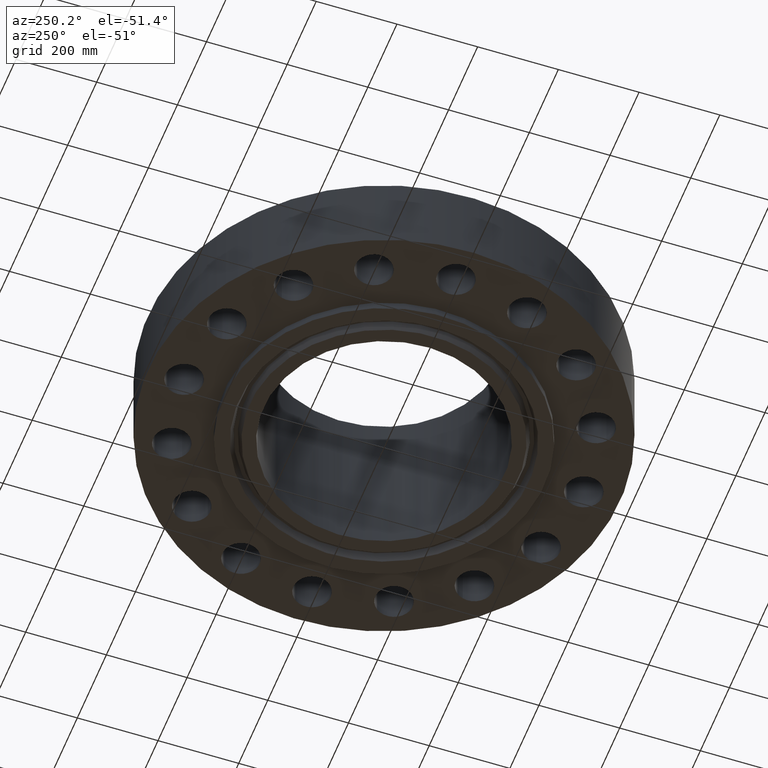
[diagram: clean part render]
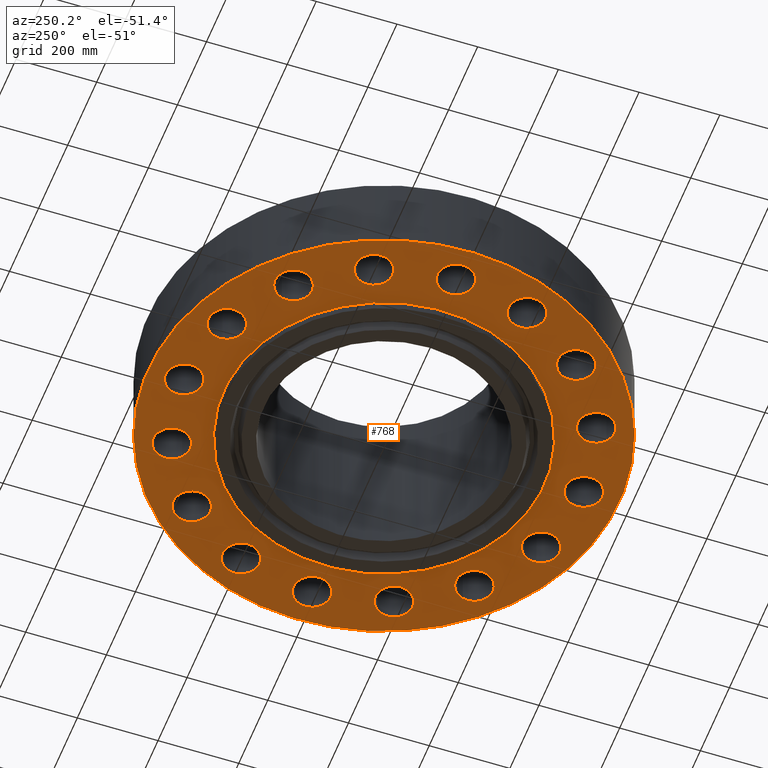
[diagram: same view with one face highlighted and labeled with its STEP entity id]
A machine part, auxiliary view. The second image highlights one B-rep face of the part: STEP entity #768.
In plain terms, the highlighted planar face has unit normal (0, 0, -1).
Its self-contained STEP definition (entity closure, byte-faithful):
#51=AXIS2_PLACEMENT_3D('Circle Axis2P3D',#49,#50,$) ;
#77=AXIS2_PLACEMENT_3D('Circle Axis2P3D',#75,#76,$) ;
#99=AXIS2_PLACEMENT_3D('Circle Axis2P3D',#97,#98,$) ;
#134=AXIS2_PLACEMENT_3D('Circle Axis2P3D',#132,#133,$) ;
#447=AXIS2_PLACEMENT_3D('Circle Axis2P3D',#445,#446,$) ;
#471=AXIS2_PLACEMENT_3D('Circle Axis2P3D',#469,#470,$) ;
#484=AXIS2_PLACEMENT_3D('Plane Axis2P3D',#481,#482,#483) ;
#500=AXIS2_PLACEMENT_3D('Circle Axis2P3D',#498,#499,$) ;
#509=AXIS2_PLACEMENT_3D('Circle Axis2P3D',#507,#508,$) ;
#518=AXIS2_PLACEMENT_3D('Circle Axis2P3D',#516,#517,$) ;
#527=AXIS2_PLACEMENT_3D('Circle Axis2P3D',#525,#526,$) ;
#536=AXIS2_PLACEMENT_3D('Circle Axis2P3D',#534,#535,$) ;
#545=AXIS2_PLACEMENT_3D('Circle Axis2P3D',#543,#544,$) ;
#554=AXIS2_PLACEMENT_3D('Circle Axis2P3D',#552,#553,$) ;
#563=AXIS2_PLACEMENT_3D('Circle Axis2P3D',#561,#562,$) ;
#572=AXIS2_PLACEMENT_3D('Circle Axis2P3D',#570,#571,$) ;
#581=AXIS2_PLACEMENT_3D('Circle Axis2P3D',#579,#580,$) ;
#590=AXIS2_PLACEMENT_3D('Circle Axis2P3D',#588,#589,$) ;
#599=AXIS2_PLACEMENT_3D('Circle Axis2P3D',#597,#598,$) ;
#608=AXIS2_PLACEMENT_3D('Circle Axis2P3D',#606,#607,$) ;
#617=AXIS2_PLACEMENT_3D('Circle Axis2P3D',#615,#616,$) ;
#626=AXIS2_PLACEMENT_3D('Circle Axis2P3D',#624,#625,$) ;
#635=AXIS2_PLACEMENT_3D('Circle Axis2P3D',#633,#634,$) ;
#644=AXIS2_PLACEMENT_3D('Circle Axis2P3D',#642,#643,$) ;
#653=AXIS2_PLACEMENT_3D('Circle Axis2P3D',#651,#652,$) ;
#662=AXIS2_PLACEMENT_3D('Circle Axis2P3D',#660,#661,$) ;
#671=AXIS2_PLACEMENT_3D('Circle Axis2P3D',#669,#670,$) ;
#680=AXIS2_PLACEMENT_3D('Circle Axis2P3D',#678,#679,$) ;
#689=AXIS2_PLACEMENT_3D('Circle Axis2P3D',#687,#688,$) ;
#698=AXIS2_PLACEMENT_3D('Circle Axis2P3D',#696,#697,$) ;
#707=AXIS2_PLACEMENT_3D('Circle Axis2P3D',#705,#706,$) ;
#716=AXIS2_PLACEMENT_3D('Circle Axis2P3D',#714,#715,$) ;
#725=AXIS2_PLACEMENT_3D('Circle Axis2P3D',#723,#724,$) ;
#734=AXIS2_PLACEMENT_3D('Circle Axis2P3D',#732,#733,$) ;
#743=AXIS2_PLACEMENT_3D('Circle Axis2P3D',#741,#742,$) ;
#752=AXIS2_PLACEMENT_3D('Circle Axis2P3D',#750,#751,$) ;
#761=AXIS2_PLACEMENT_3D('Circle Axis2P3D',#759,#760,$) ;
#44=CARTESIAN_POINT('Vertex',(-1.59281234984,20.3701573526,0.)) ;
#49=CARTESIAN_POINT('Axis2P3D Location',(0.,19.5000000001,0.)) ;
#53=CARTESIAN_POINT('Vertex',(1.59281234984,18.6298426475,0.)) ;
#75=CARTESIAN_POINT('Axis2P3D Location',(0.,19.5000000001,0.)) ;
#97=CARTESIAN_POINT('Axis2P3D Location',(0.,0.,2.23792987641E-015)) ;
#101=CARTESIAN_POINT('Vertex',(-11.0267873879,-20.1843989236,3.35689481461E-015)) ;
#103=CARTESIAN_POINT('Vertex',(11.0267873879,20.1843989236,3.35689481461E-015)) ;
#132=CARTESIAN_POINT('Axis2P3D Location',(0.,0.,2.23792987641E-015)) ;
#442=CARTESIAN_POINT('Vertex',(-7.49102404072,-13.7122275296,3.35689481461E-015)) ;
#445=CARTESIAN_POINT('Axis2P3D Location',(0.,0.,2.23792987641E-015)) ;
#449=CARTESIAN_POINT('Vertex',(7.49102404072,13.7122275296,3.35689481461E-015)) ;
#469=CARTESIAN_POINT('Axis2P3D Location',(0.,0.,2.23792987641E-015)) ;
#481=CARTESIAN_POINT('Axis2P3D Location',(0.,15.6250000001,0.)) ;
#498=CARTESIAN_POINT('Axis2P3D Location',(7.46232693115,18.015650884,0.)) ;
#502=CARTESIAN_POINT('Vertex',(6.32375500438,19.4291143493,0.)) ;
#504=CARTESIAN_POINT('Vertex',(8.60089885792,16.6021874188,0.)) ;
#507=CARTESIAN_POINT('Axis2P3D Location',(7.46232693115,18.015650884,0.)) ;
#516=CARTESIAN_POINT('Axis2P3D Location',(13.7885822332,13.7885822332,0.)) ;
#520=CARTESIAN_POINT('Vertex',(13.2775879842,15.5301648116,0.)) ;
#522=CARTESIAN_POINT('Vertex',(14.2995764822,12.0469996548,0.)) ;
#525=CARTESIAN_POINT('Axis2P3D Location',(13.7885822332,13.7885822332,0.)) ;
#534=CARTESIAN_POINT('Axis2P3D Location',(18.015650884,7.46232693115,0.)) ;
#538=CARTESIAN_POINT('Vertex',(18.210028555,9.26688846267,0.)) ;
#540=CARTESIAN_POINT('Vertex',(17.8212732131,5.65776539962,0.)) ;
#543=CARTESIAN_POINT('Axis2P3D Location',(18.015650884,7.46232693115,0.)) ;
#552=CARTESIAN_POINT('Axis2P3D Location',(19.5000000001,0.,0.)) ;
#556=CARTESIAN_POINT('Vertex',(20.3701573526,1.59281234984,0.)) ;
#558=CARTESIAN_POINT('Vertex',(18.6298426475,-1.59281234984,0.)) ;
#561=CARTESIAN_POINT('Axis2P3D Location',(19.5000000001,0.,0.)) ;
#570=CARTESIAN_POINT('Axis2P3D Location',(18.015650884,-7.46232693115,0.)) ;
#574=CARTESIAN_POINT('Vertex',(19.4291143493,-6.32375500438,0.)) ;
#576=CARTESIAN_POINT('Vertex',(16.6021874188,-8.60089885792,0.)) ;
#579=CARTESIAN_POINT('Axis2P3D Location',(18.015650884,-7.46232693115,0.)) ;
#588=CARTESIAN_POINT('Axis2P3D Location',(13.7885822332,-13.7885822332,0.)) ;
#592=CARTESIAN_POINT('Vertex',(15.5301648116,-13.2775879842,0.)) ;
#594=CARTESIAN_POINT('Vertex',(12.0469996548,-14.2995764822,0.)) ;
#597=CARTESIAN_POINT('Axis2P3D Location',(13.7885822332,-13.7885822332,0.)) ;
#606=CARTESIAN_POINT('Axis2P3D Location',(7.46232693115,-18.015650884,0.)) ;
#610=CARTESIAN_POINT('Vertex',(9.26688846267,-18.210028555,0.)) ;
#612=CARTESIAN_POINT('Vertex',(5.65776539962,-17.8212732131,0.)) ;
#615=CARTESIAN_POINT('Axis2P3D Location',(7.46232693115,-18.015650884,0.)) ;
#624=CARTESIAN_POINT('Axis2P3D Location',(1.81831802458E-015,-19.5000000001,0.)) ;
#628=CARTESIAN_POINT('Vertex',(1.59281234984,-20.3701573526,0.)) ;
#630=CARTESIAN_POINT('Vertex',(-1.59281234984,-18.6298426475,0.)) ;
#633=CARTESIAN_POINT('Axis2P3D Location',(1.67844740731E-015,-19.5000000001,0.)) ;
#642=CARTESIAN_POINT('Axis2P3D Location',(-7.46232693115,-18.015650884,0.)) ;
#646=CARTESIAN_POINT('Vertex',(-6.32375500438,-19.4291143493,0.)) ;
#648=CARTESIAN_POINT('Vertex',(-8.60089885792,-16.6021874188,0.)) ;
#651=CARTESIAN_POINT('Axis2P3D Location',(-7.46232693115,-18.015650884,0.)) ;
#660=CARTESIAN_POINT('Axis2P3D Location',(-13.7885822332,-13.7885822332,0.)) ;
#664=CARTESIAN_POINT('Vertex',(-13.2775879842,-15.5301648116,0.)) ;
#666=CARTESIAN_POINT('Vertex',(-14.2995764822,-12.0469996548,0.)) ;
#669=CARTESIAN_POINT('Axis2P3D Location',(-13.7885822332,-13.7885822332,0.)) ;
#678=CARTESIAN_POINT('Axis2P3D Location',(-18.015650884,-7.46232693115,0.)) ;
#682=CARTESIAN_POINT('Vertex',(-18.210028555,-9.26688846267,0.)) ;
#684=CARTESIAN_POINT('Vertex',(-17.8212732131,-5.65776539962,0.)) ;
#687=CARTESIAN_POINT('Axis2P3D Location',(-18.015650884,-7.46232693115,0.)) ;
#696=CARTESIAN_POINT('Axis2P3D Location',(-19.5000000001,-4.47585975282E-015,0.)) ;
#700=CARTESIAN_POINT('Vertex',(-20.3701573526,-1.59281234984,0.)) ;
#702=CARTESIAN_POINT('Vertex',(-18.6298426475,1.59281234984,0.)) ;
#705=CARTESIAN_POINT('Axis2P3D Location',(-19.5000000001,-4.47585975282E-015,0.)) ;
#714=CARTESIAN_POINT('Axis2P3D Location',(-18.015650884,7.46232693115,0.)) ;
#718=CARTESIAN_POINT('Vertex',(-19.4291143493,6.32375500438,0.)) ;
#720=CARTESIAN_POINT('Vertex',(-16.6021874188,8.60089885792,-6.71378962923E-015)) ;
#723=CARTESIAN_POINT('Axis2P3D Location',(-18.015650884,7.46232693115,0.)) ;
#732=CARTESIAN_POINT('Axis2P3D Location',(-13.7885822332,13.7885822332,0.)) ;
#736=CARTESIAN_POINT('Vertex',(-15.5301648116,13.2775879842,0.)) ;
#738=CARTESIAN_POINT('Vertex',(-12.0469996548,14.2995764822,0.)) ;
#741=CARTESIAN_POINT('Axis2P3D Location',(-13.7885822332,13.7885822332,0.)) ;
#750=CARTESIAN_POINT('Axis2P3D Location',(-7.46232693115,18.015650884,0.)) ;
#754=CARTESIAN_POINT('Vertex',(-9.26688846267,18.210028555,0.)) ;
#756=CARTESIAN_POINT('Vertex',(-5.65776539962,17.8212732131,0.)) ;
#759=CARTESIAN_POINT('Axis2P3D Location',(-7.46232693115,18.015650884,0.)) ;
#50=DIRECTION('Axis2P3D Direction',(0.,-0.,-0.0393700787402)) ;
#76=DIRECTION('Axis2P3D Direction',(0.,-0.,-0.0393700787402)) ;
#98=DIRECTION('Axis2P3D Direction',(0.,0.,-0.0393700787402)) ;
#133=DIRECTION('Axis2P3D Direction',(0.,0.,-0.0393700787402)) ;
#446=DIRECTION('Axis2P3D Direction',(0.,0.,-0.0393700787402)) ;
#470=DIRECTION('Axis2P3D Direction',(0.,0.,-0.0393700787402)) ;
#482=DIRECTION('Axis2P3D Direction',(0.,0.,-0.0393700787402)) ;
#483=DIRECTION('Axis2P3D XDirection',(0.0393700787402,0.,0.)) ;
#499=DIRECTION('Axis2P3D Direction',(0.,0.,-0.0393700787402)) ;
#508=DIRECTION('Axis2P3D Direction',(0.,0.,-0.0393700787402)) ;
#517=DIRECTION('Axis2P3D Direction',(0.,0.,-0.0393700787402)) ;
#526=DIRECTION('Axis2P3D Direction',(0.,0.,-0.0393700787402)) ;
#535=DIRECTION('Axis2P3D Direction',(0.,0.,-0.0393700787402)) ;
#544=DIRECTION('Axis2P3D Direction',(0.,0.,-0.0393700787402)) ;
#553=DIRECTION('Axis2P3D Direction',(0.,0.,-0.0393700787402)) ;
#562=DIRECTION('Axis2P3D Direction',(0.,0.,-0.0393700787402)) ;
#571=DIRECTION('Axis2P3D Direction',(0.,0.,-0.0393700787402)) ;
#580=DIRECTION('Axis2P3D Direction',(0.,0.,-0.0393700787402)) ;
#589=DIRECTION('Axis2P3D Direction',(0.,0.,-0.0393700787402)) ;
#598=DIRECTION('Axis2P3D Direction',(0.,0.,-0.0393700787402)) ;
#607=DIRECTION('Axis2P3D Direction',(0.,0.,-0.0393700787402)) ;
#616=DIRECTION('Axis2P3D Direction',(0.,0.,-0.0393700787402)) ;
#625=DIRECTION('Axis2P3D Direction',(0.,0.,-0.0393700787402)) ;
#634=DIRECTION('Axis2P3D Direction',(0.,0.,-0.0393700787402)) ;
#643=DIRECTION('Axis2P3D Direction',(0.,0.,-0.0393700787402)) ;
#652=DIRECTION('Axis2P3D Direction',(0.,0.,-0.0393700787402)) ;
#661=DIRECTION('Axis2P3D Direction',(0.,0.,-0.0393700787402)) ;
#670=DIRECTION('Axis2P3D Direction',(0.,0.,-0.0393700787402)) ;
#679=DIRECTION('Axis2P3D Direction',(0.,0.,-0.0393700787402)) ;
#688=DIRECTION('Axis2P3D Direction',(0.,0.,-0.0393700787402)) ;
#697=DIRECTION('Axis2P3D Direction',(0.,0.,-0.0393700787402)) ;
#706=DIRECTION('Axis2P3D Direction',(0.,0.,-0.0393700787402)) ;
#715=DIRECTION('Axis2P3D Direction',(0.,0.,-0.0393700787402)) ;
#724=DIRECTION('Axis2P3D Direction',(0.,0.,-0.0393700787402)) ;
#733=DIRECTION('Axis2P3D Direction',(0.,0.,-0.0393700787402)) ;
#742=DIRECTION('Axis2P3D Direction',(0.,0.,-0.0393700787402)) ;
#751=DIRECTION('Axis2P3D Direction',(0.,0.,-0.0393700787402)) ;
#760=DIRECTION('Axis2P3D Direction',(0.,0.,-0.0393700787402)) ;
#487=ORIENTED_EDGE('',*,*,#105,.T.) ;
#488=ORIENTED_EDGE('',*,*,#136,.T.) ;
#491=ORIENTED_EDGE('',*,*,#79,.F.) ;
#492=ORIENTED_EDGE('',*,*,#55,.F.) ;
#495=ORIENTED_EDGE('',*,*,#473,.F.) ;
#496=ORIENTED_EDGE('',*,*,#451,.F.) ;
#513=ORIENTED_EDGE('',*,*,#506,.F.) ;
#514=ORIENTED_EDGE('',*,*,#511,.F.) ;
#531=ORIENTED_EDGE('',*,*,#524,.F.) ;
#532=ORIENTED_EDGE('',*,*,#529,.F.) ;
#549=ORIENTED_EDGE('',*,*,#542,.F.) ;
#550=ORIENTED_EDGE('',*,*,#547,.F.) ;
#567=ORIENTED_EDGE('',*,*,#560,.F.) ;
#568=ORIENTED_EDGE('',*,*,#565,.F.) ;
#585=ORIENTED_EDGE('',*,*,#578,.F.) ;
#586=ORIENTED_EDGE('',*,*,#583,.F.) ;
#603=ORIENTED_EDGE('',*,*,#596,.F.) ;
#604=ORIENTED_EDGE('',*,*,#601,.F.) ;
#621=ORIENTED_EDGE('',*,*,#614,.F.) ;
#622=ORIENTED_EDGE('',*,*,#619,.F.) ;
#639=ORIENTED_EDGE('',*,*,#632,.F.) ;
#640=ORIENTED_EDGE('',*,*,#637,.F.) ;
#657=ORIENTED_EDGE('',*,*,#650,.F.) ;
#658=ORIENTED_EDGE('',*,*,#655,.F.) ;
#675=ORIENTED_EDGE('',*,*,#668,.F.) ;
#676=ORIENTED_EDGE('',*,*,#673,.F.) ;
#693=ORIENTED_EDGE('',*,*,#686,.F.) ;
#694=ORIENTED_EDGE('',*,*,#691,.F.) ;
#711=ORIENTED_EDGE('',*,*,#704,.F.) ;
#712=ORIENTED_EDGE('',*,*,#709,.F.) ;
#729=ORIENTED_EDGE('',*,*,#722,.F.) ;
#730=ORIENTED_EDGE('',*,*,#727,.F.) ;
#747=ORIENTED_EDGE('',*,*,#740,.F.) ;
#748=ORIENTED_EDGE('',*,*,#745,.F.) ;
#765=ORIENTED_EDGE('',*,*,#758,.F.) ;
#766=ORIENTED_EDGE('',*,*,#763,.F.) ;
#493=FACE_BOUND('',#490,.T.) ;
#497=FACE_BOUND('',#494,.T.) ;
#515=FACE_BOUND('',#512,.T.) ;
#533=FACE_BOUND('',#530,.T.) ;
#551=FACE_BOUND('',#548,.T.) ;
#569=FACE_BOUND('',#566,.T.) ;
#587=FACE_BOUND('',#584,.T.) ;
#605=FACE_BOUND('',#602,.T.) ;
#623=FACE_BOUND('',#620,.T.) ;
#641=FACE_BOUND('',#638,.T.) ;
#659=FACE_BOUND('',#656,.T.) ;
#677=FACE_BOUND('',#674,.T.) ;
#695=FACE_BOUND('',#692,.T.) ;
#713=FACE_BOUND('',#710,.T.) ;
#731=FACE_BOUND('',#728,.T.) ;
#749=FACE_BOUND('',#746,.T.) ;
#767=FACE_BOUND('',#764,.T.) ;
#768=ADVANCED_FACE('PartBody',(#489,#493,#497,#515,#533,#551,#569,#587,#605,#623,#641,#659,#677,#695,#713,#731,#749,#767),#485,.T.) ;
#52=CIRCLE('generated circle',#51,1.81500000001) ;
#78=CIRCLE('generated circle',#77,1.81500000001) ;
#100=CIRCLE('generated circle',#99,23.0000000001) ;
#135=CIRCLE('generated circle',#134,23.0000000001) ;
#448=CIRCLE('generated circle',#447,15.6250000001) ;
#472=CIRCLE('generated circle',#471,15.6250000001) ;
#501=CIRCLE('generated circle',#500,1.81500000001) ;
#510=CIRCLE('generated circle',#509,1.81500000001) ;
#519=CIRCLE('generated circle',#518,1.81500000001) ;
#528=CIRCLE('generated circle',#527,1.81500000001) ;
#537=CIRCLE('generated circle',#536,1.81500000001) ;
#546=CIRCLE('generated circle',#545,1.81500000001) ;
#555=CIRCLE('generated circle',#554,1.81500000001) ;
#564=CIRCLE('generated circle',#563,1.81500000001) ;
#573=CIRCLE('generated circle',#572,1.81500000001) ;
#582=CIRCLE('generated circle',#581,1.81500000001) ;
#591=CIRCLE('generated circle',#590,1.81500000001) ;
#600=CIRCLE('generated circle',#599,1.81500000001) ;
#609=CIRCLE('generated circle',#608,1.81500000001) ;
#618=CIRCLE('generated circle',#617,1.81500000001) ;
#627=CIRCLE('generated circle',#626,1.81500000001) ;
#636=CIRCLE('generated circle',#635,1.81500000001) ;
#645=CIRCLE('generated circle',#644,1.81500000001) ;
#654=CIRCLE('generated circle',#653,1.81500000001) ;
#663=CIRCLE('generated circle',#662,1.81500000001) ;
#672=CIRCLE('generated circle',#671,1.81500000001) ;
#681=CIRCLE('generated circle',#680,1.81500000001) ;
#690=CIRCLE('generated circle',#689,1.81500000001) ;
#699=CIRCLE('generated circle',#698,1.81500000001) ;
#708=CIRCLE('generated circle',#707,1.81500000001) ;
#717=CIRCLE('generated circle',#716,1.81500000001) ;
#726=CIRCLE('generated circle',#725,1.81500000001) ;
#735=CIRCLE('generated circle',#734,1.81500000001) ;
#744=CIRCLE('generated circle',#743,1.81500000001) ;
#753=CIRCLE('generated circle',#752,1.81500000001) ;
#762=CIRCLE('generated circle',#761,1.81500000001) ;
#55=EDGE_CURVE('',#45,#54,#52,.T.) ;
#79=EDGE_CURVE('',#54,#45,#78,.T.) ;
#105=EDGE_CURVE('',#102,#104,#100,.T.) ;
#136=EDGE_CURVE('',#104,#102,#135,.T.) ;
#451=EDGE_CURVE('',#443,#450,#448,.T.) ;
#473=EDGE_CURVE('',#450,#443,#472,.T.) ;
#506=EDGE_CURVE('',#503,#505,#501,.T.) ;
#511=EDGE_CURVE('',#505,#503,#510,.T.) ;
#524=EDGE_CURVE('',#521,#523,#519,.T.) ;
#529=EDGE_CURVE('',#523,#521,#528,.T.) ;
#542=EDGE_CURVE('',#539,#541,#537,.T.) ;
#547=EDGE_CURVE('',#541,#539,#546,.T.) ;
#560=EDGE_CURVE('',#557,#559,#555,.T.) ;
#565=EDGE_CURVE('',#559,#557,#564,.T.) ;
#578=EDGE_CURVE('',#575,#577,#573,.T.) ;
#583=EDGE_CURVE('',#577,#575,#582,.T.) ;
#596=EDGE_CURVE('',#593,#595,#591,.T.) ;
#601=EDGE_CURVE('',#595,#593,#600,.T.) ;
#614=EDGE_CURVE('',#611,#613,#609,.T.) ;
#619=EDGE_CURVE('',#613,#611,#618,.T.) ;
#632=EDGE_CURVE('',#629,#631,#627,.T.) ;
#637=EDGE_CURVE('',#631,#629,#636,.T.) ;
#650=EDGE_CURVE('',#647,#649,#645,.T.) ;
#655=EDGE_CURVE('',#649,#647,#654,.T.) ;
#668=EDGE_CURVE('',#665,#667,#663,.T.) ;
#673=EDGE_CURVE('',#667,#665,#672,.T.) ;
#686=EDGE_CURVE('',#683,#685,#681,.T.) ;
#691=EDGE_CURVE('',#685,#683,#690,.T.) ;
#704=EDGE_CURVE('',#701,#703,#699,.T.) ;
#709=EDGE_CURVE('',#703,#701,#708,.T.) ;
#722=EDGE_CURVE('',#719,#721,#717,.T.) ;
#727=EDGE_CURVE('',#721,#719,#726,.T.) ;
#740=EDGE_CURVE('',#737,#739,#735,.T.) ;
#745=EDGE_CURVE('',#739,#737,#744,.T.) ;
#758=EDGE_CURVE('',#755,#757,#753,.T.) ;
#763=EDGE_CURVE('',#757,#755,#762,.T.) ;
#486=EDGE_LOOP('',(#487,#488)) ;
#490=EDGE_LOOP('',(#491,#492)) ;
#494=EDGE_LOOP('',(#495,#496)) ;
#512=EDGE_LOOP('',(#513,#514)) ;
#530=EDGE_LOOP('',(#531,#532)) ;
#548=EDGE_LOOP('',(#549,#550)) ;
#566=EDGE_LOOP('',(#567,#568)) ;
#584=EDGE_LOOP('',(#585,#586)) ;
#602=EDGE_LOOP('',(#603,#604)) ;
#620=EDGE_LOOP('',(#621,#622)) ;
#638=EDGE_LOOP('',(#639,#640)) ;
#656=EDGE_LOOP('',(#657,#658)) ;
#674=EDGE_LOOP('',(#675,#676)) ;
#692=EDGE_LOOP('',(#693,#694)) ;
#710=EDGE_LOOP('',(#711,#712)) ;
#728=EDGE_LOOP('',(#729,#730)) ;
#746=EDGE_LOOP('',(#747,#748)) ;
#764=EDGE_LOOP('',(#765,#766)) ;
#489=FACE_OUTER_BOUND('',#486,.T.) ;
#485=PLANE('',#484) ;
#45=VERTEX_POINT('',#44) ;
#54=VERTEX_POINT('',#53) ;
#102=VERTEX_POINT('',#101) ;
#104=VERTEX_POINT('',#103) ;
#443=VERTEX_POINT('',#442) ;
#450=VERTEX_POINT('',#449) ;
#503=VERTEX_POINT('',#502) ;
#505=VERTEX_POINT('',#504) ;
#521=VERTEX_POINT('',#520) ;
#523=VERTEX_POINT('',#522) ;
#539=VERTEX_POINT('',#538) ;
#541=VERTEX_POINT('',#540) ;
#557=VERTEX_POINT('',#556) ;
#559=VERTEX_POINT('',#558) ;
#575=VERTEX_POINT('',#574) ;
#577=VERTEX_POINT('',#576) ;
#593=VERTEX_POINT('',#592) ;
#595=VERTEX_POINT('',#594) ;
#611=VERTEX_POINT('',#610) ;
#613=VERTEX_POINT('',#612) ;
#629=VERTEX_POINT('',#628) ;
#631=VERTEX_POINT('',#630) ;
#647=VERTEX_POINT('',#646) ;
#649=VERTEX_POINT('',#648) ;
#665=VERTEX_POINT('',#664) ;
#667=VERTEX_POINT('',#666) ;
#683=VERTEX_POINT('',#682) ;
#685=VERTEX_POINT('',#684) ;
#701=VERTEX_POINT('',#700) ;
#703=VERTEX_POINT('',#702) ;
#719=VERTEX_POINT('',#718) ;
#721=VERTEX_POINT('',#720) ;
#737=VERTEX_POINT('',#736) ;
#739=VERTEX_POINT('',#738) ;
#755=VERTEX_POINT('',#754) ;
#757=VERTEX_POINT('',#756) ;